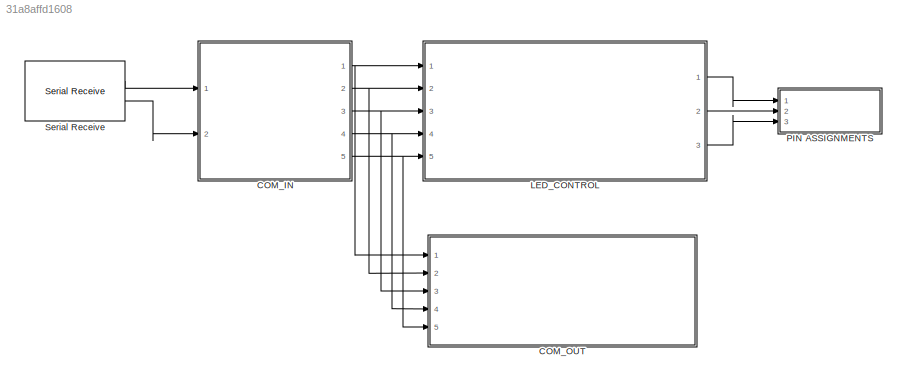
MODEL slx_31a8affd1608
KIND model
CONFIG AbsTol = auto
CONFIG EnableMultiTasking = on
CONFIG FixedStep = 1e-3
CONFIG MaxStep = auto
CONFIG MinStep = auto
CONFIG RelTol = 1e-3
CONFIG SampleTimeConstraint = Unconstrained
CONFIG Solver = FixedStepAuto
CONFIG SolverName = FixedStepAuto
CONFIG StartTime = 0.0
CONFIG StopTime = 10.0
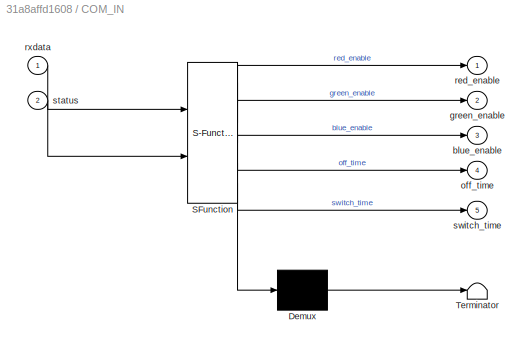
BLOCK [SubSystem] COM_IN
  ErrorFcn = Stateflow.Translate.translate
  PermitHierarchicalResolution = ExplicitOnly
  Ports = [2, 5]
  RequestExecContextInheritance = off
  SFBlockType = Chart
  TreatAsAtomicUnit = on
BLOCK [Demux] COM_IN/ Demux 
  Outputs = 1
  Ports = [1, 1]
BLOCK [S-Function] COM_IN/ SFunction 
  EnableBusSupport = off
  FunctionName = sf_sfun
  PortCounts = [2 6]
  Ports = [2, 6]
  SFcnIsStateOwnerBlock = off
  SFunctionDeploymentMode = off
  Tag = Stateflow S-Function 1
BLOCK [Terminator] COM_IN/ Terminator 
BLOCK [Outport] COM_IN/blue_enable
  Port = 3
BLOCK [Outport] COM_IN/green_enable
  Port = 2
BLOCK [Outport] COM_IN/off_time
  Port = 4
BLOCK [Outport] COM_IN/red_enable
BLOCK [Inport] COM_IN/rxdata
BLOCK [Inport] COM_IN/status
  Port = 2
BLOCK [Outport] COM_IN/switch_time
  Port = 5
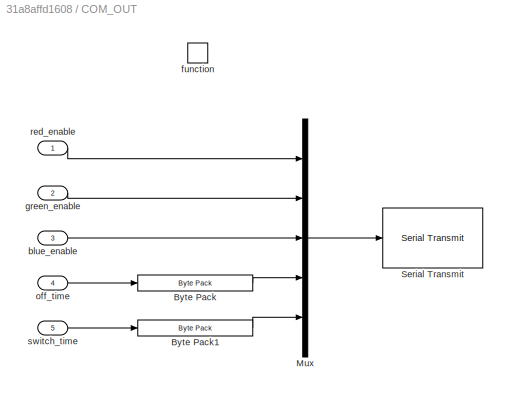
BLOCK [SubSystem] COM_OUT
  Ports = [5, 0, 0, 1]
  RequestExecContextInheritance = off
BLOCK [Reference] COM_OUT/Byte Pack  REF=etargetslib/Byte Pack
  Ports = [1, 1]
  SourceBlock = etargetslib/Byte Pack
  SourceProductBaseCode = ME
  SourceType = Byte pack
BLOCK [Reference] COM_OUT/Byte Pack1  REF=etargetslib/Byte Pack
  Ports = [1, 1]
  SourceBlock = etargetslib/Byte Pack
  SourceProductBaseCode = ME
  SourceType = Byte pack
BLOCK [Mux] COM_OUT/Mux
  DisplayOption = bar
  Inputs = 5
  Ports = [5, 1]
BLOCK [Reference] COM_OUT/Serial Transmit  REF=frdmk64flib/Serial Transmit
  Ports = [1]
  SourceBlock = frdmk64flib/Serial Transmit
  SourceProductBaseCode = EC_FRDM_K64F
  SourceType = freedomk64f.SCIWrite
BLOCK [Inport] COM_OUT/blue_enable
  Port = 3
BLOCK [TriggerPort] COM_OUT/function
  FunctionName = send_params
  IsSimulinkFunction = on
  Ports = []
  StatesWhenEnabling = held
  TriggerType = function-call
  VariantControl = Variant
BLOCK [Inport] COM_OUT/green_enable
  Port = 2
BLOCK [Inport] COM_OUT/off_time
  Port = 4
BLOCK [Inport] COM_OUT/red_enable
BLOCK [Inport] COM_OUT/switch_time
  Port = 5
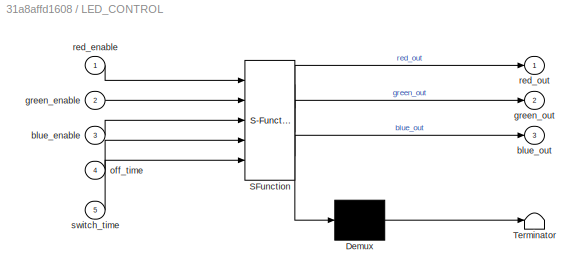
BLOCK [SubSystem] LED_CONTROL
  ErrorFcn = Stateflow.Translate.translate
  PermitHierarchicalResolution = ExplicitOnly
  Ports = [5, 3]
  RequestExecContextInheritance = off
  SFBlockType = Chart
  TreatAsAtomicUnit = on
BLOCK [Demux] LED_CONTROL/ Demux 
  Outputs = 1
  Ports = [1, 1]
BLOCK [S-Function] LED_CONTROL/ SFunction 
  EnableBusSupport = off
  FunctionName = sf_sfun
  PortCounts = [5 4]
  Ports = [5, 4]
  SFcnIsStateOwnerBlock = off
  SFunctionDeploymentMode = off
  Tag = Stateflow S-Function 3
BLOCK [Terminator] LED_CONTROL/ Terminator 
BLOCK [Inport] LED_CONTROL/blue_enable
  Port = 3
BLOCK [Outport] LED_CONTROL/blue_out
  Port = 3
BLOCK [Inport] LED_CONTROL/green_enable
  Port = 2
BLOCK [Outport] LED_CONTROL/green_out
  Port = 2
BLOCK [Inport] LED_CONTROL/off_time
  Port = 4
BLOCK [Inport] LED_CONTROL/red_enable
BLOCK [Outport] LED_CONTROL/red_out
BLOCK [Inport] LED_CONTROL/switch_time
  Port = 5
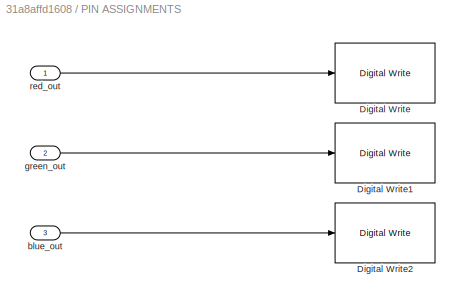
BLOCK [SubSystem] PIN ASSIGNMENTS
  Ports = [3]
  RequestExecContextInheritance = off
BLOCK [Reference] PIN ASSIGNMENTS/Digital Write  REF=frdmk64flib/Digital Write
  Ports = [1]
  SourceBlock = frdmk64flib/Digital Write
  SourceProductBaseCode = EC_FRDM_K64F
  SourceType = freedomk64f.DigitalWrite
BLOCK [Reference] PIN ASSIGNMENTS/Digital Write1  REF=frdmk64flib/Digital Write
  Ports = [1]
  SourceBlock = frdmk64flib/Digital Write
  SourceProductBaseCode = EC_FRDM_K64F
  SourceType = freedomk64f.DigitalWrite
BLOCK [Reference] PIN ASSIGNMENTS/Digital Write2  REF=frdmk64flib/Digital Write
  Ports = [1]
  SourceBlock = frdmk64flib/Digital Write
  SourceProductBaseCode = EC_FRDM_K64F
  SourceType = freedomk64f.DigitalWrite
BLOCK [Inport] PIN ASSIGNMENTS/blue_out
  Port = 3
BLOCK [Inport] PIN ASSIGNMENTS/green_out
  Port = 2
BLOCK [Inport] PIN ASSIGNMENTS/red_out
BLOCK [Reference] Serial Receive  REF=frdmk64flib/Serial Receive
  Ports = [0, 2]
  SourceBlock = frdmk64flib/Serial Receive
  SourceProductBaseCode = EC_FRDM_K64F
  SourceType = freedomk64f.SCIRead
NET COM_IN:1 -> COM_OUT:1, LED_CONTROL:1
NET COM_IN:2 -> COM_OUT:2, LED_CONTROL:2
NET COM_IN:3 -> COM_OUT:3, LED_CONTROL:3
NET COM_IN:4 -> COM_OUT:4, LED_CONTROL:4
NET COM_IN:5 -> COM_OUT:5, LED_CONTROL:5
LINE COM_OUT/Byte Pack1:1 -> COM_OUT/Mux:5
LINE COM_OUT/Byte Pack:1 -> COM_OUT/Mux:4
LINE COM_OUT/Mux:1 -> COM_OUT/Serial Transmit:1
LINE COM_OUT/blue_enable:1 -> COM_OUT/Mux:3
LINE COM_OUT/green_enable:1 -> COM_OUT/Mux:2
LINE COM_OUT/off_time:1 -> COM_OUT/Byte Pack:1
LINE COM_OUT/red_enable:1 -> COM_OUT/Mux:1
LINE COM_OUT/switch_time:1 -> COM_OUT/Byte Pack1:1
LINE LED_CONTROL:1 -> PIN ASSIGNMENTS:1
LINE LED_CONTROL:2 -> PIN ASSIGNMENTS:2
LINE LED_CONTROL:3 -> PIN ASSIGNMENTS:3
LINE PIN ASSIGNMENTS/blue_out:1 -> PIN ASSIGNMENTS/Digital Write2:1
LINE PIN ASSIGNMENTS/green_out:1 -> PIN ASSIGNMENTS/Digital Write1:1
LINE PIN ASSIGNMENTS/red_out:1 -> PIN ASSIGNMENTS/Digital Write:1
LINE Serial Receive:1 -> COM_IN:1
LINE Serial Receive:2 -> COM_IN:2
note: NET lines group one-source signal fan-out (src -> all destinations, sorted); 1:1 wires keep LINE
CHART COM_IN states=4 transitions=8
  STATE_LABEL "SET_PARAM\nentry:\nred_enable=rxdata(3);\ngreen_enable=rxdata(4);\nblue_enable=rxdata(5);\noff_time=typecast(rxdata(6:9), 'single');\nswitch_time=typecast(rxdata(10:11), 'uint16');"
  STATE_LABEL 'INITIAL\n% Set the initial values of parameters\nentry:\nred_enable=1;\ngreen_enable=1;\nblue_enable=0;\noff_time=0.5; % in s\nswitch_time=200; %in ms'
  STATE_LABEL 'STANDBY\n% waiting for COM'
  STATE_LABEL 'ECHO_PARAM\nentry:\nsend_params();'
CHART LED_CONTROL states=4 transitions=12
  STATE_LABEL 'OFF\nentry:\nred_out=0;\ngreen_out=0;\nblue_out=0;'
  STATE_LABEL 'RED_ON\nentry:\nred_out=1;\ngreen_out=0;\nblue_out=0;'
  STATE_LABEL 'BLUE_ON\nentry:\nred_out=0;\ngreen_out=0;\nblue_out=1;'
  STATE_LABEL 'GREEN_ON\nentry:\nred_out=0;\ngreen_out=1;\nblue_out=0;'
CHART  states=0 transitions=0
CHART  states=0 transitions=0
